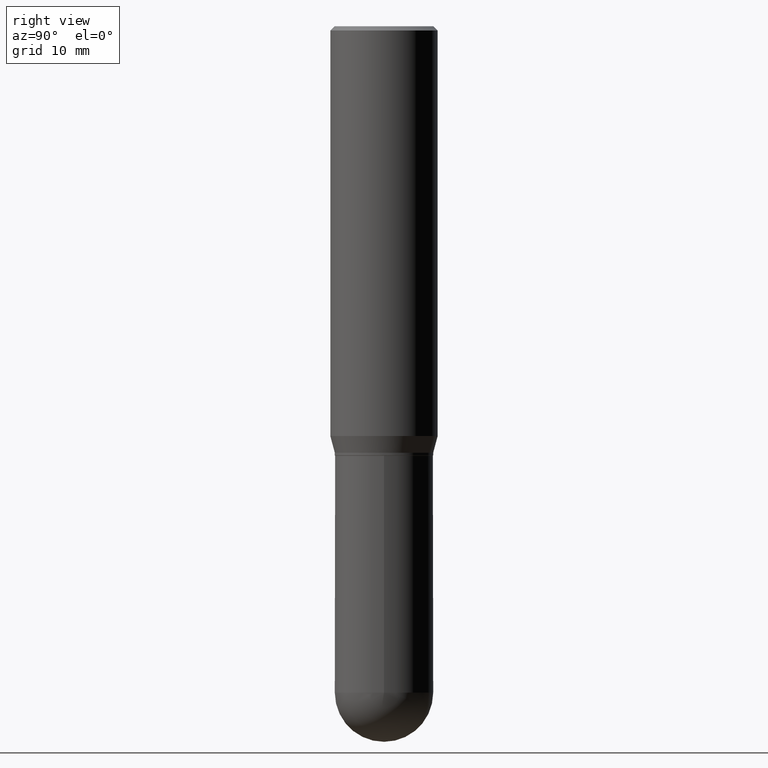
[diagram: clean part render]
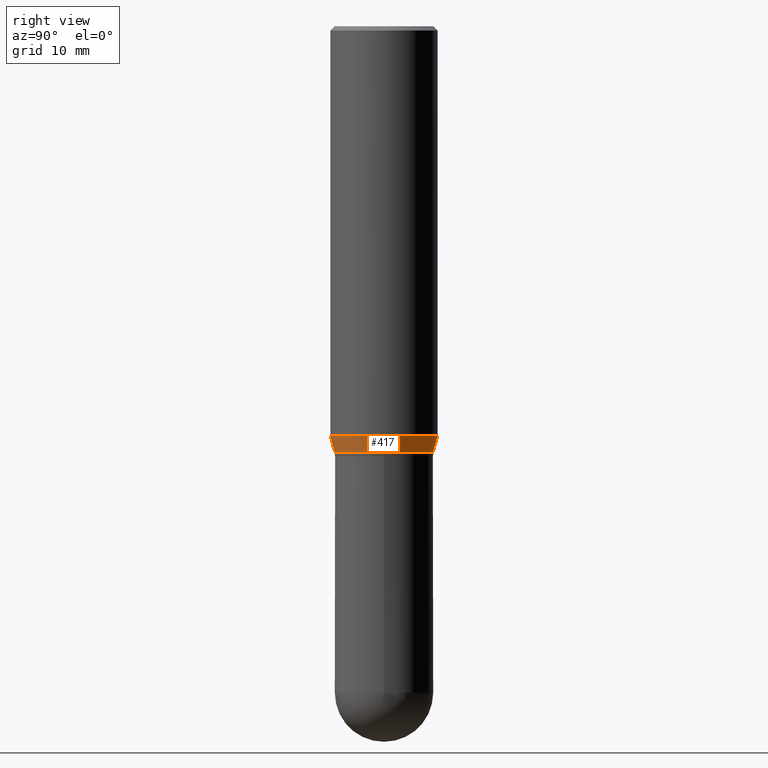
[diagram: same view with one face highlighted and labeled with its STEP entity id]
A machine part, right view. The second image highlights one B-rep face of the part: STEP entity #417.
In plain terms, the highlighted conical surface has half-angle 15 deg.
Its self-contained STEP definition (entity closure, byte-faithful):
#7 = VECTOR ( 'NONE', #157, 39.37007874015748854 ) ;
#8 = AXIS2_PLACEMENT_3D ( 'NONE', #290, #251, #373 ) ;
#10 = VERTEX_POINT ( 'NONE', #289 ) ;
#12 = CARTESIAN_POINT ( 'NONE',  ( 1.276845296160934931E-15, 0.1718999999999946959, -1.490000000000000879 ) ) ;
#14 = CARTESIAN_POINT ( 'NONE',  ( 1.221422962771647501E-15, 0.1718999999999946959, -1.490000000000000879 ) ) ;
#16 = EDGE_CURVE ( 'NONE', #10, #431, #366, .T. ) ;
#35 = EDGE_LOOP ( 'NONE', ( #114, #144, #363, #340 ) ) ;
#49 = CARTESIAN_POINT ( 'NONE',  ( 3.500846880770375597E-29, -4.999787104516626728E-15, -1.431780007401925348 ) ) ;
#77 = CIRCLE ( 'NONE', #8, 0.1718999999999998862 ) ;
#91 = CARTESIAN_POINT ( 'NONE',  ( -1.200371284294231968E-15, -0.1719000000000050765, -1.489999999999999769 ) ) ;
#92 = EDGE_CURVE ( 'NONE', #431, #105, #222, .T. ) ;
#105 = VERTEX_POINT ( 'NONE', #246 ) ;
#108 = VECTOR ( 'NONE', #501, 39.37007874015748143 ) ;
#109 = AXIS2_PLACEMENT_3D ( 'NONE', #498, #244, #208 ) ;
#114 = ORIENTED_EDGE ( 'NONE', *, *, #342, .T. ) ;
#144 = ORIENTED_EDGE ( 'NONE', *, *, #253, .T. ) ;
#157 = DIRECTION ( 'NONE',  ( 1.839019923739597949E-15, 0.2588190451025246253, 0.9659258262890670910 ) ) ;
#176 = AXIS2_PLACEMENT_3D ( 'NONE', #49, #496, #249 ) ;
#208 = DIRECTION ( 'NONE',  ( -6.982962677686265922E-15, -1.000000000000000000, 3.178415350394723646E-15 ) ) ;
#222 = CIRCLE ( 'NONE', #176, 0.1875000000000000278 ) ;
#244 = DIRECTION ( 'NONE',  ( -2.445101106784506129E-29, 3.492007905312998807E-15, 1.000000000000000000 ) ) ;
#246 = CARTESIAN_POINT ( 'NONE',  ( 1.332267629550222558E-15, 0.1874999999999950318, -1.431780007401926014 ) ) ;
#247 = CARTESIAN_POINT ( 'NONE',  ( -1.309305502066140101E-15, -0.1875000000000049960, -1.431780007401924903 ) ) ;
#249 = DIRECTION ( 'NONE',  ( -6.982962677686265922E-15, -1.000000000000000000, 2.913971193241880372E-15 ) ) ;
#251 = DIRECTION ( 'NONE',  ( -2.445101106784506129E-29, 3.492007905312998807E-15, 1.000000000000000000 ) ) ;
#253 = EDGE_CURVE ( 'NONE', #512, #105, #356, .T. ) ;
#289 = CARTESIAN_POINT ( 'NONE',  ( -1.200371284294231968E-15, -0.1719000000000050765, -1.489999999999999769 ) ) ;
#290 = CARTESIAN_POINT ( 'NONE',  ( 3.643200649108914518E-29, -5.203091778916368972E-15, -1.490000000000000213 ) ) ;
#340 = ORIENTED_EDGE ( 'NONE', *, *, #16, .F. ) ;
#342 = EDGE_CURVE ( 'NONE', #10, #512, #77, .T. ) ;
#347 = CONICAL_SURFACE ( 'NONE', #109, 0.1718999999999998862, 0.2617993877991499629 ) ;
#356 = LINE ( 'NONE', #14, #7 ) ;
#363 = ORIENTED_EDGE ( 'NONE', *, *, #92, .F. ) ;
#366 = LINE ( 'NONE', #91, #108 ) ;
#373 = DIRECTION ( 'NONE',  ( -6.982962677686265922E-15, -1.000000000000000000, 3.178415350394723646E-15 ) ) ;
#417 = ADVANCED_FACE ( 'NONE', ( #460 ), #347, .T. ) ;
#431 = VERTEX_POINT ( 'NONE', #247 ) ;
#460 = FACE_OUTER_BOUND ( 'NONE', #35, .T. ) ;
#496 = DIRECTION ( 'NONE',  ( -2.445101106784506129E-29, 3.492007905312998807E-15, 1.000000000000000000 ) ) ;
#498 = CARTESIAN_POINT ( 'NONE',  ( 3.643200649108914518E-29, -5.203091778916368972E-15, -1.490000000000000213 ) ) ;
#501 = DIRECTION ( 'NONE',  ( -1.807323732225328167E-15, -0.2588190451025179084, 0.9659258262890690894 ) ) ;
#512 = VERTEX_POINT ( 'NONE', #12 ) ;